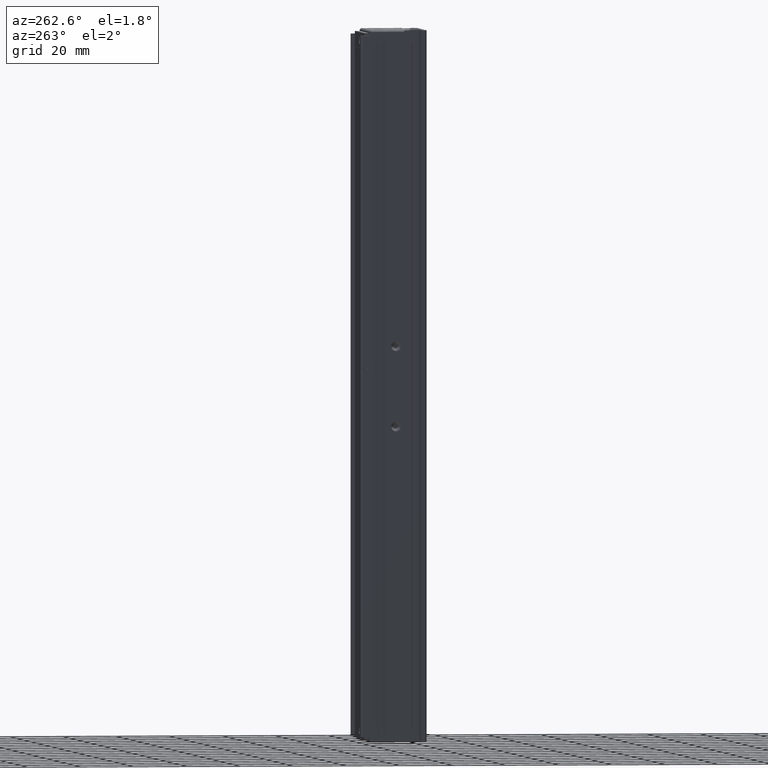
[diagram: clean part render]
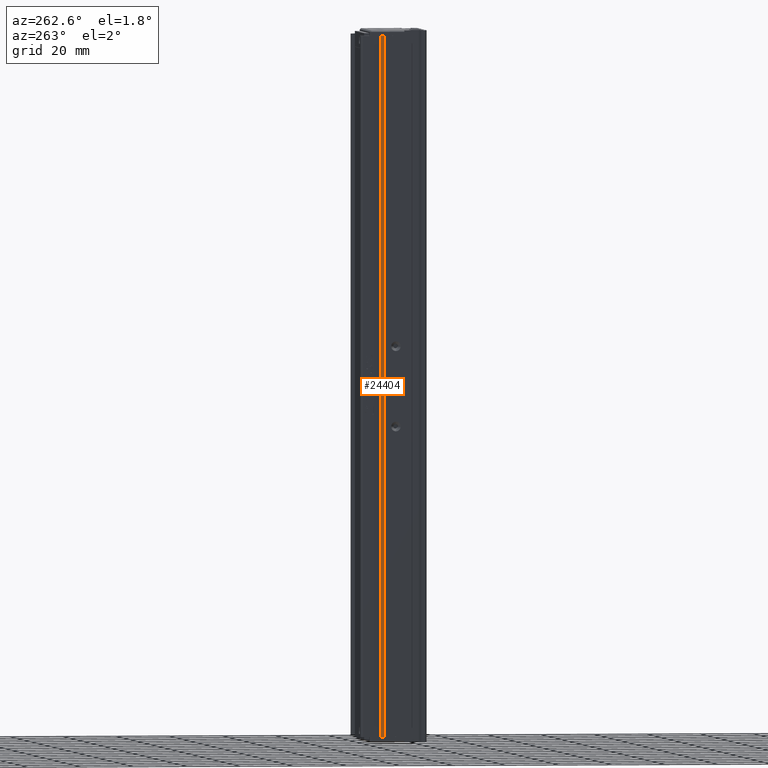
[diagram: same view with one face highlighted and labeled with its STEP entity id]
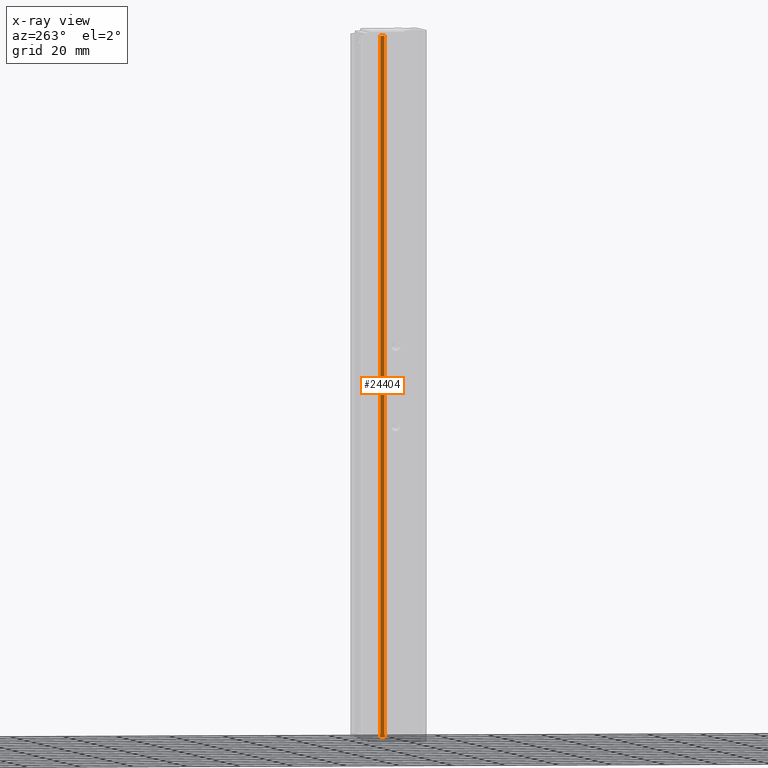
[diagram: x-ray of the same camera — body ghosted, the highlighted face saturated]
A machine part, auxiliary view. The second image highlights one B-rep face of the part: STEP entity #24404.
The next image is the same camera in x-ray: the body ghosted, the highlighted face saturated — about 0% of this face is hidden behind the body in this view.
In plain terms, the highlighted planar face has unit normal (1, 0, -0).
Its self-contained STEP definition (entity closure, byte-faithful):
#951 = CARTESIAN_POINT ( 'NONE',  ( 26.42537974683541800, 26.69594479660386800, 16.00000000000000000 ) ) ;
#1827 = CARTESIAN_POINT ( 'NONE',  ( 26.42537974683542100, 7.083797468354437600, 18.00000000000000400 ) ) ;
#3474 = VERTEX_POINT ( 'NONE', #951 ) ;
#5623 = VECTOR ( 'NONE', #33080, 1000.000000000000000 ) ;
#6147 = DIRECTION ( 'NONE',  ( -0.0000000000000000000, 0.0000000000000000000, -1.000000000000000000 ) ) ;
#6380 = EDGE_CURVE ( 'NONE', #21211, #3474, #36377, .T. ) ;
#9456 = VERTEX_POINT ( 'NONE', #32307 ) ;
#15775 = FACE_OUTER_BOUND ( 'NONE', #25911, .T. ) ;
#16443 = CARTESIAN_POINT ( 'NONE',  ( 26.42537974683542100, 26.69594479660386800, 18.00000000000000400 ) ) ;
#16485 = DIRECTION ( 'NONE',  ( -0.0000000000000000000, 0.0000000000000000000, 1.000000000000000000 ) ) ;
#17484 = CARTESIAN_POINT ( 'NONE',  ( 26.42537974683542100, 7.083797468354437600, 16.00000000000000000 ) ) ;
#19063 = LINE ( 'NONE', #31097, #51847 ) ;
#21211 = VERTEX_POINT ( 'NONE', #52518 ) ;
#21994 = ORIENTED_EDGE ( 'NONE', *, *, #6380, .T. ) ;
#24061 = LINE ( 'NONE', #17484, #46831 ) ;
#24404 = ADVANCED_FACE ( 'NONE', ( #15775 ), #40231, .F. ) ;
#24578 = EDGE_CURVE ( 'NONE', #21211, #24950, #29745, .T. ) ;
#24950 = VERTEX_POINT ( 'NONE', #31138 ) ;
#25911 = EDGE_LOOP ( 'NONE', ( #33142, #37599, #27410, #21994 ) ) ;
#27410 = ORIENTED_EDGE ( 'NONE', *, *, #24578, .F. ) ;
#29745 = LINE ( 'NONE', #41526, #5623 ) ;
#31097 = CARTESIAN_POINT ( 'NONE',  ( 26.42537974683542100, 28.19594479660387200, 18.00000000000000400 ) ) ;
#31138 = CARTESIAN_POINT ( 'NONE',  ( 26.42537974683541800, 28.19594479660387500, -246.0000000000000000 ) ) ;
#31771 = DIRECTION ( 'NONE',  ( 1.000000000000000000, 0.0000000000000000000, -0.0000000000000000000 ) ) ;
#32307 = CARTESIAN_POINT ( 'NONE',  ( 26.42537974683541800, 28.19594479660387500, 16.00000000000000000 ) ) ;
#33080 = DIRECTION ( 'NONE',  ( 0.0000000000000000000, 1.000000000000000000, 0.0000000000000000000 ) ) ;
#33142 = ORIENTED_EDGE ( 'NONE', *, *, #38879, .F. ) ;
#34945 = AXIS2_PLACEMENT_3D ( 'NONE', #1827, #31771, #6147 ) ;
#36377 = LINE ( 'NONE', #16443, #45078 ) ;
#37599 = ORIENTED_EDGE ( 'NONE', *, *, #50347, .F. ) ;
#38879 = EDGE_CURVE ( 'NONE', #9456, #3474, #24061, .T. ) ;
#40108 = DIRECTION ( 'NONE',  ( 0.0000000000000000000, -0.0000000000000000000, 1.000000000000000000 ) ) ;
#40231 = PLANE ( 'NONE',  #34945 ) ;
#41526 = CARTESIAN_POINT ( 'NONE',  ( 26.42537974683542100, 7.083797468354437600, -246.0000000000000000 ) ) ;
#45078 = VECTOR ( 'NONE', #16485, 1000.000000000000000 ) ;
#46831 = VECTOR ( 'NONE', #47336, 1000.000000000000000 ) ;
#47336 = DIRECTION ( 'NONE',  ( -0.0000000000000000000, -1.000000000000000000, -0.0000000000000000000 ) ) ;
#50347 = EDGE_CURVE ( 'NONE', #24950, #9456, #19063, .T. ) ;
#51847 = VECTOR ( 'NONE', #40108, 1000.000000000000000 ) ;
#52518 = CARTESIAN_POINT ( 'NONE',  ( 26.42537974683541800, 26.69594479660386800, -246.0000000000000000 ) ) ;